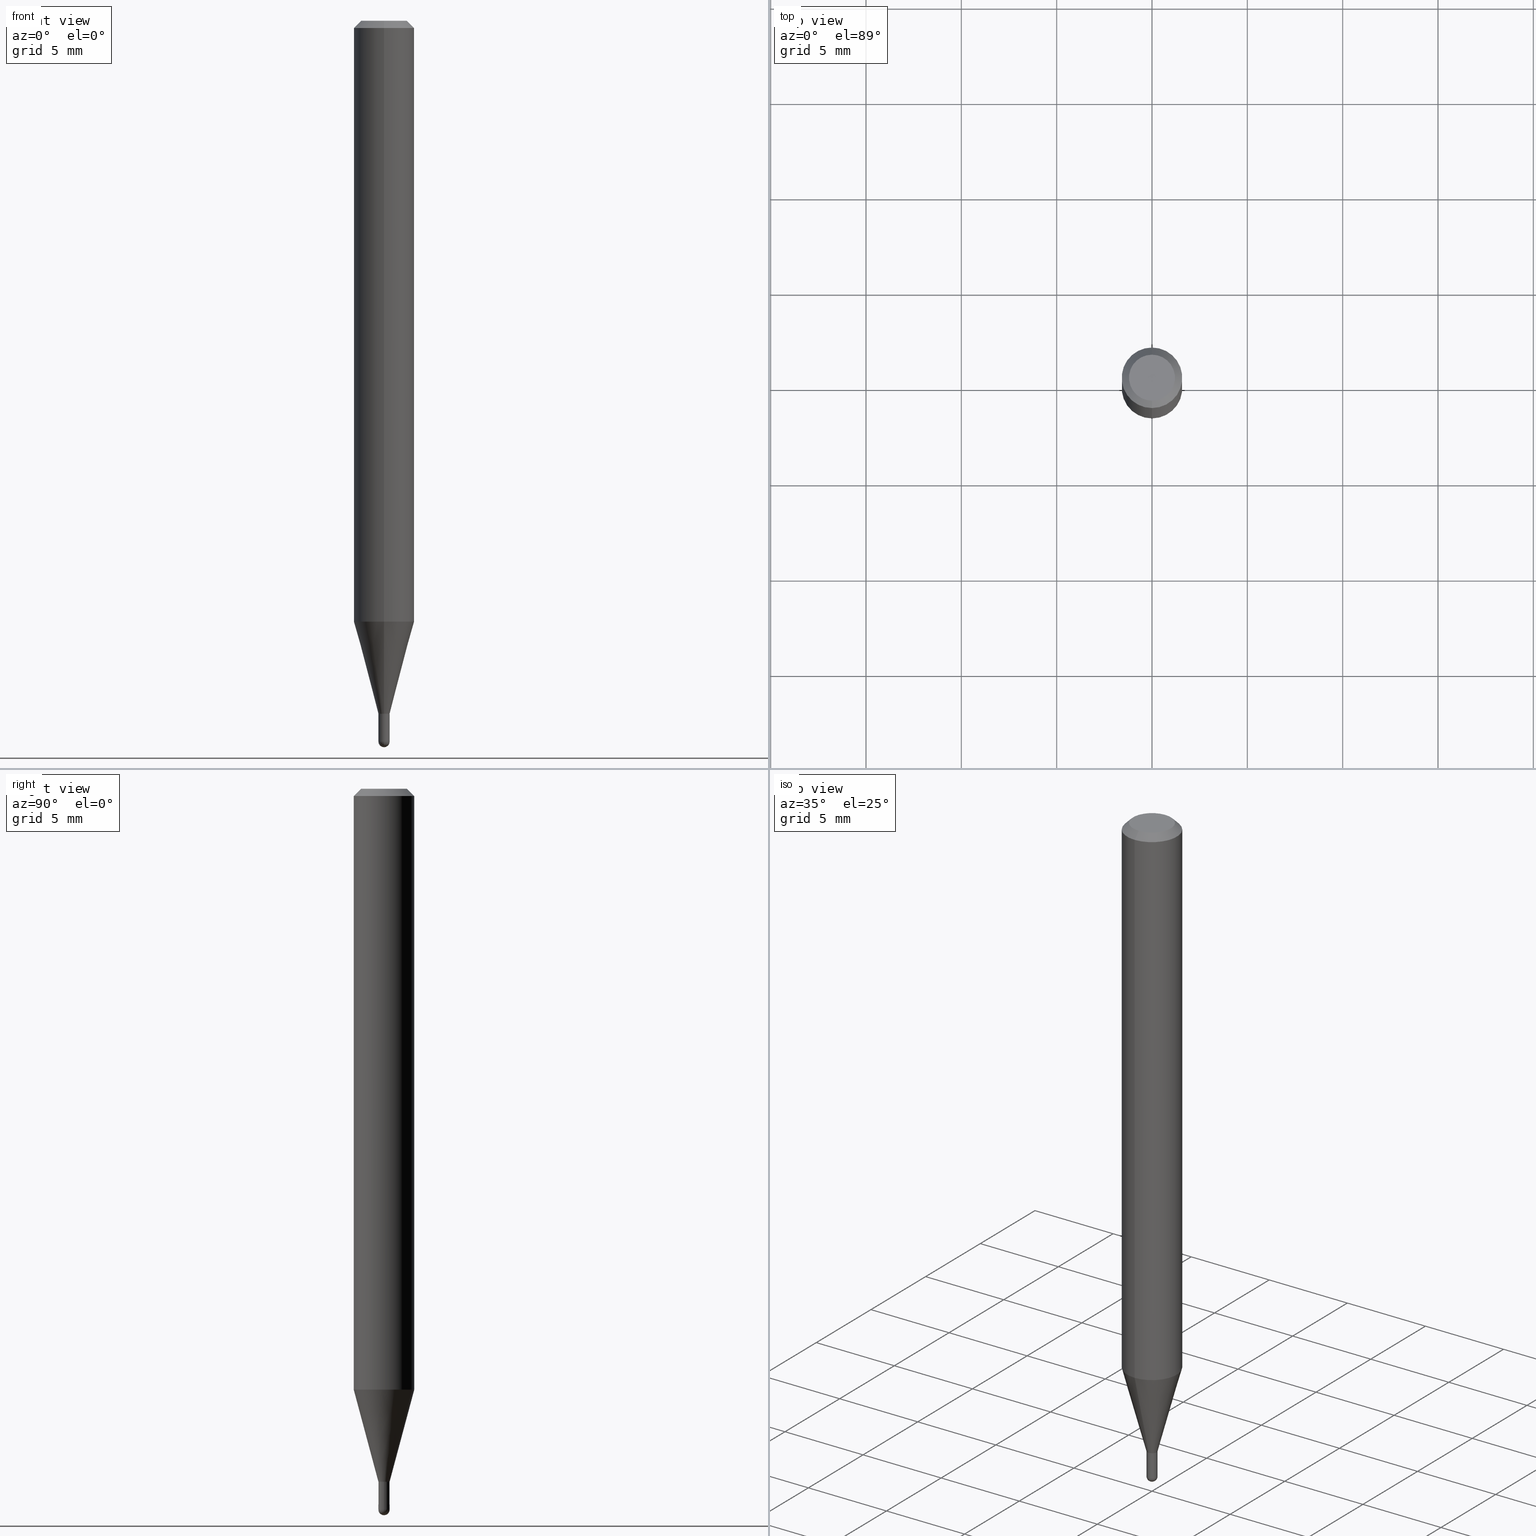
[diagram: canonical four-view strip — front | top / right | iso, engineering-drawing reading convention]
A machine part, canonical four-view strip (front | top / right | iso — engineering-drawing reading convention). The complete STEP part file that produces these views, byte-faithful:
ISO-10303-21;
HEADER;
FILE_DESCRIPTION (( 'STEP AP203' ),
    '1' );
FILE_NAME ('01446.STEP',
    '2024-03-07T20:59:36',
    ( '' ),
    ( '' ),
    'SwSTEP 2.0',
    'SolidWorks 2023',
    '' );
FILE_SCHEMA (( 'CONFIG_CONTROL_DESIGN' ));
ENDSEC;

DATA;
#1 = CARTESIAN_POINT ( 'NONE',  ( -8.030407079339154307E-17, -0.01149999999999992521, 4.015180704281670797E-17 ) ) ;
#2 = CYLINDRICAL_SURFACE ( 'NONE', #236, 0.01149999999999992521 ) ;
#3 = AXIS2_PLACEMENT_3D ( 'NONE', #492, #203, #173 ) ;
#4 = CARTESIAN_POINT ( 'NONE',  ( 3.639096876774019405E-29, -5.198478316687040897E-15, -1.488499999999999934 ) ) ;
#5 = CARTESIAN_POINT ( 'NONE',  ( -4.364351673553613969E-16, -0.06250000000000432987, -1.240665408813993009 ) ) ;
#6 = ORIENTED_EDGE ( 'NONE', *, *, #372, .T. ) ;
#7 = DIRECTION ( 'NONE',  ( 1.000000000000000000, -6.982962677686291165E-15, 0.000000000000000000 ) ) ;
#8 = PERSON_AND_ORGANIZATION_ROLE ( 'design_owner' ) ;
#9 = CIRCLE ( 'NONE', #510, 0.01100000000000000110 ) ;
#10 = ORIENTED_EDGE ( 'NONE', *, *, #16, .T. ) ;
#11 = DIRECTION ( 'NONE',  ( -2.445482672155709146E-29, 3.491461481984083655E-15, 1.000000000000000000 ) ) ;
#12 = ORIENTED_EDGE ( 'NONE', *, *, #239, .T. ) ;
#13 = AXIS2_PLACEMENT_3D ( 'NONE', #427, #430, #390 ) ;
#14 = PERSON_AND_ORGANIZATION ( #384, #244 ) ;
#15 = ORIENTED_EDGE ( 'NONE', *, *, #76, .F. ) ;
#16 = EDGE_CURVE ( 'NONE', #476, #337, #298, .T. ) ;
#17 = ORIENTED_EDGE ( 'NONE', *, *, #120, .F. ) ;
#18 = DIRECTION ( 'NONE',  ( -2.445482672155709146E-29, 3.491461481984083655E-15, 1.000000000000000000 ) ) ;
#19 = DATE_AND_TIME ( #253, #423 ) ;
#20 = CARTESIAN_POINT ( 'NONE',  ( 3.034025759197599694E-29, -4.331735486904094553E-15, -1.240665408813993231 ) ) ;
#21 = VERTEX_POINT ( 'NONE', #386 ) ;
#22 = VERTEX_POINT ( 'NONE', #30 ) ;
#23 = DIRECTION ( 'NONE',  ( -6.982962677686265922E-15, -1.000000000000000000, 3.491461481984083655E-15 ) ) ;
#24 = ORIENTED_EDGE ( 'NONE', *, *, #86, .T. ) ;
#25 = CIRCLE ( 'NONE', #472, 0.01150000000000020450 ) ;
#26 = AXIS2_PLACEMENT_3D ( 'NONE', #153, #477, #316 ) ;
#27 = PLANE ( 'NONE',  #208 ) ;
#28 = DIRECTION ( 'NONE',  ( -2.445482672155709146E-29, 3.491461481984083655E-15, 1.000000000000000000 ) ) ;
#29 = CARTESIAN_POINT ( 'NONE',  ( 8.171241461244863344E-17, 0.01149999999999490319, -1.488499999999999934 ) ) ;
#30 = CARTESIAN_POINT ( 'NONE',  ( -4.364351673553912750E-16, -0.06250000000000005551, -0.01499999999999979128 ) ) ;
#31 = FACE_OUTER_BOUND ( 'NONE', #370, .T. ) ;
#32 = ORIENTED_EDGE ( 'NONE', *, *, #350, .T. ) ;
#33 = APPROVAL ( #362, 'UNSPECIFIED' ) ;
#34 = LOCAL_TIME ( 15, 59, 36.00000000000000000, #442 ) ;
#35 = DIRECTION ( 'NONE',  ( 6.982962677686265922E-15, 1.000000000000000000, -3.483106191921935554E-15 ) ) ;
#36 = CIRCLE ( 'NONE', #414, 0.06250000000000000000 ) ;
#37 = DIRECTION ( 'NONE',  ( -2.445482672155709146E-29, 3.491461481984083655E-15, 1.000000000000000000 ) ) ;
#38 = DIRECTION ( 'NONE',  ( 2.445482672155708866E-29, -3.491461481984083655E-15, -1.000000000000000000 ) ) ;
#39 = DIRECTION ( 'NONE',  ( -6.982962677686265922E-15, -1.000000000000000000, 3.483106191921935554E-15 ) ) ;
#40 = CARTESIAN_POINT ( 'NONE',  ( 3.499485703854820099E-29, -4.996281380719223965E-15, -1.431000000000000050 ) ) ;
#41 = VECTOR ( 'NONE', #53, 39.37007874015748143 ) ;
#42 = LOCAL_TIME ( 15, 59, 36.00000000000000000, #419 ) ;
#43 = ORIENTED_EDGE ( 'NONE', *, *, #479, .F. ) ;
#44 = FACE_OUTER_BOUND ( 'NONE', #409, .T. ) ;
#45 = ORIENTED_EDGE ( 'NONE', *, *, #76, .T. ) ;
#46 = FACE_OUTER_BOUND ( 'NONE', #146, .T. ) ;
#47 = LINE ( 'NONE', #200, #450 ) ;
#48 = CONICAL_SURFACE ( 'NONE', #279, 0.01149999999999992521, 0.2617993877991575125 ) ;
#49 = EDGE_CURVE ( 'NONE', #107, #431, #373, .T. ) ;
#50 = PRODUCT_DEFINITION_SHAPE ( 'NONE', 'NONE',  #202 ) ;
#51 = EDGE_CURVE ( 'NONE', #488, #337, #321, .T. ) ;
#52 = ORIENTED_EDGE ( 'NONE', *, *, #199, .F. ) ;
#53 = DIRECTION ( 'NONE',  ( 4.937700262164548042E-15, 0.7071067811865451302, -0.7071067811865499042 ) ) ;
#54 = DIRECTION ( 'NONE',  ( -2.445468806185136597E-29, 3.491481338843145583E-15, 1.000000000000000000 ) ) ;
#55 = CARTESIAN_POINT ( 'NONE',  ( 3.640080318006575506E-29, -5.197069972868022017E-15, -1.488499999999999934 ) ) ;
#56 = CONICAL_SURFACE ( 'NONE', #154, 0.01100000000000000110, 0.7853981633974739252 ) ;
#57 = ORIENTED_EDGE ( 'NONE', *, *, #486, .T. ) ;
#58 = DIRECTION ( 'NONE',  ( 1.000000000000000000, -6.982962677686291165E-15, 0.000000000000000000 ) ) ;
#59 = AXIS2_PLACEMENT_3D ( 'NONE', #220, #70, #219 ) ;
#60 = ADVANCED_FACE ( 'NONE', ( #210 ), #326, .F. ) ;
#61 = DIRECTION ( 'NONE',  ( -2.445468806185136597E-29, 3.491481338843145583E-15, 1.000000000000000000 ) ) ;
#62 = CYLINDRICAL_SURFACE ( 'NONE', #235, 0.01149999999999999981 ) ;
#63 = ORIENTED_EDGE ( 'NONE', *, *, #303, .T. ) ;
#64 = CC_DESIGN_APPROVAL ( #249, ( #202 ) ) ;
#65 = ORIENTED_EDGE ( 'NONE', *, *, #103, .F. ) ;
#66 = CLOSED_SHELL ( 'NONE', ( #84, #508, #404, #280, #106 ) ) ;
#67 = AXIS2_PLACEMENT_3D ( 'NONE', #229, #509, #401 ) ;
#68 = DIRECTION ( 'NONE',  ( 6.982962677686265922E-15, 1.000000000000000000, -3.491461481984083655E-15 ) ) ;
#69 = ORIENTED_EDGE ( 'NONE', *, *, #121, .T. ) ;
#70 = DIRECTION ( 'NONE',  ( -2.445482672155709146E-29, 3.491461481984083655E-15, 1.000000000000000000 ) ) ;
#71 = DIRECTION ( 'NONE',  ( 2.445482672155709146E-29, -3.491461481984083655E-15, -1.000000000000000000 ) ) ;
#72 = ORIENTED_EDGE ( 'NONE', *, *, #87, .T. ) ;
#73 = DIRECTION ( 'NONE',  ( 2.445482672155709146E-29, -3.491461481984083655E-15, -1.000000000000000000 ) ) ;
#74 = AXIS2_PLACEMENT_3D ( 'NONE', #336, #73, #35 ) ;
#75 = CARTESIAN_POINT ( 'NONE',  ( 3.666728047428871024E-29, -5.239334523993247680E-15, -1.500000000000000222 ) ) ;
#76 = EDGE_CURVE ( 'NONE', #448, #22, #134, .T. ) ;
#77 = DIRECTION ( 'NONE',  ( -4.937700262164674260E-15, -0.7071067811865632269, 0.7071067811865319186 ) ) ;
#78 = CONICAL_SURFACE ( 'NONE', #441, 0.01149999999999992521, 0.2617993877991575125 ) ;
#79 = DIRECTION ( 'NONE',  ( 7.105427357601001070E-15, 1.000000000000000000, 0.000000000000000000 ) ) ;
#80 = ORIENTED_EDGE ( 'NONE', *, *, #350, .F. ) ;
#81 = CALENDAR_DATE ( 2024, 7, 3 ) ;
#82 = DIRECTION ( 'NONE',  ( -2.445482672155709146E-29, 3.491461481984083655E-15, 1.000000000000000000 ) ) ;
#83 = CARTESIAN_POINT ( 'NONE',  ( 7.993605777304599016E-17, 0.01099999999999500509, -1.431000000000000050 ) ) ;
#84 = ADVANCED_FACE ( 'NONE', ( #282 ), #170, .T. ) ;
#85 = ORIENTED_EDGE ( 'NONE', *, *, #121, .F. ) ;
#86 = EDGE_CURVE ( 'NONE', #464, #476, #36, .T. ) ;
#87 = EDGE_CURVE ( 'NONE', #233, #431, #138, .T. ) ;
#88 = AXIS2_PLACEMENT_3D ( 'NONE', #187, #483, #184 ) ;
#89 = CARTESIAN_POINT ( 'NONE',  ( 3.640080318006575506E-29, -5.197069972868022017E-15, -1.488499999999999934 ) ) ;
#90 = CARTESIAN_POINT ( 'NONE',  ( -4.364351673553916201E-16, -0.06250000000000000000, 2.182163426240052284E-16 ) ) ;
#91 = EDGE_LOOP ( 'NONE', ( #12, #439, #380, #52 ) ) ;
#92 = APPROVAL_STATUS ( 'not_yet_approved' ) ;
#93 = DIRECTION ( 'NONE',  ( -6.982962677686266711E-15, -1.000000000000000000, 3.491461481984083655E-15 ) ) ;
#94 = EDGE_LOOP ( 'NONE', ( #230, #277 ) ) ;
#95 = VECTOR ( 'NONE', #37, 39.37007874015748143 ) ;
#96 = APPROVAL_DATE_TIME ( #19, #365 ) ;
#97 = CYLINDRICAL_SURFACE ( 'NONE', #297, 0.06250000000000000000 ) ;
#98 = CC_DESIGN_DATE_AND_TIME_ASSIGNMENT ( #358, #275, ( #202 ) ) ;
#99 = DATE_TIME_ROLE ( 'classification_date' ) ;
#100 = PERSON_AND_ORGANIZATION ( #384, #244 ) ;
#101 = CARTESIAN_POINT ( 'NONE',  ( 7.815970093364600929E-17, 0.01099999999999500509, -1.431000000000000050 ) ) ;
#102 = CARTESIAN_POINT ( 'NONE',  ( 3.499485703854820099E-29, -4.996281380719223965E-15, -1.431000000000000050 ) ) ;
#103 = EDGE_CURVE ( 'NONE', #141, #122, #440, .T. ) ;
#104 = ADVANCED_BREP_SHAPE_REPRESENTATION ( '01446', ( #188, #360, #478 ), #397 ) ;
#105 = VERTEX_POINT ( 'NONE', #240 ) ;
#106 = ADVANCED_FACE ( 'NONE', ( #324 ), #62, .T. ) ;
#107 = VERTEX_POINT ( 'NONE', #213 ) ;
#108 = CIRCLE ( 'NONE', #206, 0.01149999999999999981 ) ;
#109 = CONICAL_SURFACE ( 'NONE', #340, 0.01100000000000000110, 0.7853981633974739252 ) ;
#110 = CC_DESIGN_APPROVAL ( #33, ( #281 ) ) ;
#111 = DIRECTION ( 'NONE',  ( -2.445482672155709146E-29, 3.491461481984083655E-15, 1.000000000000000000 ) ) ;
#112 = CARTESIAN_POINT ( 'NONE',  ( 3.499465861650930802E-29, -4.996309795884541218E-15, -1.431000000000000050 ) ) ;
#113 = LINE ( 'NONE', #101, #128 ) ;
#114 = ORIENTED_EDGE ( 'NONE', *, *, #103, .T. ) ;
#115 = EDGE_CURVE ( 'NONE', #488, #448, #247, .T. ) ;
#116 = FACE_OUTER_BOUND ( 'NONE', #287, .T. ) ;
#117 = CARTESIAN_POINT ( 'NONE',  ( -7.681258945451393699E-17, -0.01100000000000499710, -1.431000000000000050 ) ) ;
#118 = ORIENTED_EDGE ( 'NONE', *, *, #381, .F. ) ;
#119 = LINE ( 'NONE', #1, #314 ) ;
#120 = EDGE_CURVE ( 'NONE', #368, #476, #329, .T. ) ;
#121 = EDGE_CURVE ( 'NONE', #21, #105, #470, .T. ) ;
#122 = VERTEX_POINT ( 'NONE', #29 ) ;
#123 = PERSON_AND_ORGANIZATION_ROLE ( 'creator' ) ;
#124 = DIRECTION ( 'NONE',  ( -6.982962677686265922E-15, -1.000000000000000000, 0.000000000000000000 ) ) ;
#125 = CARTESIAN_POINT ( 'NONE',  ( -8.030407079335637713E-17, -0.01150000000000530112, -1.488499999999999934 ) ) ;
#126 = ORIENTED_EDGE ( 'NONE', *, *, #276, .F. ) ;
#127 = DIRECTION ( 'NONE',  ( -2.445482672155709146E-29, 3.491461481984083655E-15, 1.000000000000000000 ) ) ;
#128 = VECTOR ( 'NONE', #342, 39.37007874015748143 ) ;
#129 = APPROVAL_ROLE ( '' ) ;
#130 = PLANE ( 'NONE',  #346 ) ;
#131 = PERSON_AND_ORGANIZATION ( #384, #244 ) ;
#132 = ORIENTED_EDGE ( 'NONE', *, *, #506, .F. ) ;
#133 = APPROVAL_PERSON_ORGANIZATION ( #315, #33, #129 ) ;
#134 = LINE ( 'NONE', #290, #148 ) ;
#135 = AXIS2_PLACEMENT_3D ( 'NONE', #293, #460, #296 ) ;
#136 = LOCAL_TIME ( 15, 59, 36.00000000000000000, #378 ) ;
#137 = DIRECTION ( 'NONE',  ( -2.445468806185136597E-29, 3.491481338843145583E-15, 1.000000000000000000 ) ) ;
#138 = LINE ( 'NONE', #451, #348 ) ;
#139 = DIRECTION ( 'NONE',  ( -6.982962677686265922E-15, -1.000000000000000000, 3.491461481984083655E-15 ) ) ;
#140 = DIRECTION ( 'NONE',  ( 1.839019923739649619E-15, 0.2588190451025318972, 0.9659258262890650926 ) ) ;
#141 = VERTEX_POINT ( 'NONE', #457 ) ;
#142 = CIRCLE ( 'NONE', #407, 0.01100000000000000110 ) ;
#143 = CARTESIAN_POINT ( 'NONE',  ( 3.498262962518742048E-29, -4.994535649978232265E-15, -1.430500000000000327 ) ) ;
#144 = DIRECTION ( 'NONE',  ( -1.000000000000000000, 6.982962677686265922E-15, -4.883557194083112340E-29 ) ) ;
#145 = DIRECTION ( 'NONE',  ( -6.982962677686265922E-15, -1.000000000000000000, 0.000000000000000000 ) ) ;
#146 = EDGE_LOOP ( 'NONE', ( #459, #63, #263, #497 ) ) ;
#147 = VECTOR ( 'NONE', #11, 39.37007874015748143 ) ;
#148 = VECTOR ( 'NONE', #374, 39.37007874015748143 ) ;
#149 = DIRECTION ( 'NONE',  ( -2.445482672155709146E-29, 3.491461481984083655E-15, 1.000000000000000000 ) ) ;
#150 = ORIENTED_EDGE ( 'NONE', *, *, #420, .T. ) ;
#151 = CARTESIAN_POINT ( 'NONE',  ( 3.639096876774019405E-29, -5.198478316687040897E-15, -1.488499999999999934 ) ) ;
#152 = VECTOR ( 'NONE', #140, 39.37007874015748854 ) ;
#153 = CARTESIAN_POINT ( 'NONE',  ( 0.000000000000000000, 0.000000000000000000, 0.000000000000000000 ) ) ;
#154 = AXIS2_PLACEMENT_3D ( 'NONE', #198, #232, #405 ) ;
#155 = APPLICATION_PROTOCOL_DEFINITION ( 'international standard', 'config_control_design', 1994, #288 ) ;
#156 = DIRECTION ( 'NONE',  ( -6.982962677686266711E-15, -1.000000000000000000, 3.491461481984084444E-15 ) ) ;
#157 = ORIENTED_EDGE ( 'NONE', *, *, #87, .F. ) ;
#158 = APPROVAL_DATE_TIME ( #484, #249 ) ;
#159 = LINE ( 'NONE', #117, #392 ) ;
#160 = DIRECTION ( 'NONE',  ( -2.445482672155709146E-29, 3.491461481984083655E-15, 1.000000000000000000 ) ) ;
#161 = AXIS2_PLACEMENT_3D ( 'NONE', #284, #379, #93 ) ;
#162 = ADVANCED_FACE ( 'NONE', ( #463 ), #27, .F. ) ;
#163 = EDGE_LOOP ( 'NONE', ( #24, #10, #461, #501 ) ) ;
#164 = DATE_AND_TIME ( #272, #323 ) ;
#165 = ADVANCED_FACE ( 'NONE', ( #31 ), #434, .T. ) ;
#166 = DIRECTION ( 'NONE',  ( -2.445482672155709146E-29, 3.491461481984083655E-15, 1.000000000000000000 ) ) ;
#167 = CIRCLE ( 'NONE', #135, 0.06250000000000000000 ) ;
#168 = DIRECTION ( 'NONE',  ( -6.982962677686265922E-15, -1.000000000000000000, 0.000000000000000000 ) ) ;
#169 = CC_DESIGN_APPROVAL ( #365, ( #349 ) ) ;
#170 = CYLINDRICAL_SURFACE ( 'NONE', #3, 0.01149999999999999981 ) ;
#171 = ORIENTED_EDGE ( 'NONE', *, *, #16, .F. ) ;
#172 = CC_DESIGN_PERSON_AND_ORGANIZATION_ASSIGNMENT ( #351, #123, ( #281 ) ) ;
#173 = DIRECTION ( 'NONE',  ( 1.000000000000000000, -6.982962677686267499E-15, 4.876176775795935793E-29 ) ) ;
#174 = APPROVAL_STATUS ( 'not_yet_approved' ) ;
#175 = DIRECTION ( 'NONE',  ( 1.000000000000000000, -6.982962677686265922E-15, 4.883557194083112901E-29 ) ) ;
#176 = CARTESIAN_POINT ( 'NONE',  ( 3.499485703854820099E-29, -4.996281380719223965E-15, -1.431000000000000050 ) ) ;
#177 =( NAMED_UNIT ( * ) PLANE_ANGLE_UNIT ( ) SI_UNIT ( $, .RADIAN. ) );
#178 = ADVANCED_FACE ( 'NONE', ( #500 ), #261, .T. ) ;
#179 = AXIS2_PLACEMENT_3D ( 'NONE', #265, #160, #469 ) ;
#180 = DIRECTION ( 'NONE',  ( 6.982962677686265922E-15, 1.000000000000000000, -3.483106191921935554E-15 ) ) ;
#181 = EDGE_LOOP ( 'NONE', ( #317, #221, #328, #69 ) ) ;
#182 = LINE ( 'NONE', #185, #308 ) ;
#183 = VECTOR ( 'NONE', #432, 39.37007874015748143 ) ;
#184 = DIRECTION ( 'NONE',  ( 1.000000000000000000, -6.982962677686291165E-15, 0.000000000000000000 ) ) ;
#185 = CARTESIAN_POINT ( 'NONE',  ( -8.030407079335653737E-17, -0.01150000000000492122, -1.431000000000000050 ) ) ;
#186 = ORIENTED_EDGE ( 'NONE', *, *, #479, .T. ) ;
#187 = CARTESIAN_POINT ( 'NONE',  ( 3.640080318006575506E-29, -5.197069972868022017E-15, -1.488499999999999934 ) ) ;
#188 = MANIFOLD_SOLID_BREP ( 'Body-Move/Copy2[1]', #66 ) ;
#189 = CARTESIAN_POINT ( 'NONE',  ( 0.000000000000000000, 0.000000000000000000, 0.000000000000000000 ) ) ;
#190 = CC_DESIGN_SECURITY_CLASSIFICATION ( #349, ( #281 ) ) ;
#191 = UNCERTAINTY_MEASURE_WITH_UNIT (LENGTH_MEASURE( 1.000000000000000082E-05 ), #251, 'distance_accuracy_value', 'NONE');
#192 = CLOSED_SHELL ( 'NONE', ( #395, #212, #178, #318, #335, #327, #487, #165, #162, #60, #406, #361 ) ) ;
#193 = DIRECTION ( 'NONE',  ( -6.982962677686265922E-15, -1.000000000000000000, 0.000000000000000000 ) ) ;
#194 = CIRCLE ( 'NONE', #269, 0.01149999999999999981 ) ;
#195 = CARTESIAN_POINT ( 'NONE',  ( 8.030407079342705414E-17, 0.01149999999999500380, -1.431000000000000050 ) ) ;
#196 = EDGE_CURVE ( 'NONE', #354, #433, #25, .T. ) ;
#197 = ORIENTED_EDGE ( 'NONE', *, *, #429, .T. ) ;
#198 = CARTESIAN_POINT ( 'NONE',  ( 3.499485703854820099E-29, -4.996281380719223965E-15, -1.431000000000000050 ) ) ;
#199 = EDGE_CURVE ( 'NONE', #274, #464, #182, .T. ) ;
#200 = CARTESIAN_POINT ( 'NONE',  ( 8.171241461241097765E-17, 0.01149999999999992521, -4.015180704281670797E-17 ) ) ;
#201 = AXIS2_PLACEMENT_3D ( 'NONE', #4, #475, #124 ) ;
#202 = PRODUCT_DEFINITION ( 'UNKNOWN', '', #281, #313 ) ;
#203 = DIRECTION ( 'NONE',  ( -2.445468806185136597E-29, 3.491481338843145583E-15, 1.000000000000000000 ) ) ;
#204 = ORIENTED_EDGE ( 'NONE', *, *, #303, .F. ) ;
#205 = SPHERICAL_SURFACE ( 'NONE', #438, 0.01150000000000020450 ) ;
#206 = AXIS2_PLACEMENT_3D ( 'NONE', #55, #54, #58 ) ;
#207 = DIRECTION ( 'NONE',  ( -2.445482672155708866E-29, 3.491461481984083655E-15, 1.000000000000000000 ) ) ;
#208 = AXIS2_PLACEMENT_3D ( 'NONE', #424, #38, #68 ) ;
#209 = CIRCLE ( 'NONE', #425, 0.01150000000000020450 ) ;
#210 = FACE_OUTER_BOUND ( 'NONE', #512, .T. ) ;
#211 = VERTEX_POINT ( 'NONE', #504 ) ;
#212 = ADVANCED_FACE ( 'NONE', ( #300 ), #109, .T. ) ;
#213 = CARTESIAN_POINT ( 'NONE',  ( 0.01149999999999999981, -5.076613866677933538E-15, -1.431000000000000050 ) ) ;
#214 = DIMENSIONAL_EXPONENTS ( 1.000000000000000000, 0.000000000000000000, 0.000000000000000000, 0.000000000000000000, 0.000000000000000000, 0.000000000000000000, 0.000000000000000000 ) ;
#215 = DIRECTION ( 'NONE',  ( -2.445482672155709146E-29, 3.491461481984083655E-15, 1.000000000000000000 ) ) ;
#216 = APPROVAL_ROLE ( '' ) ;
#217 = CARTESIAN_POINT ( 'NONE',  ( 4.440892098500625669E-16, 0.06250000000000000000, -2.182163426240052284E-16 ) ) ;
#218 = EDGE_CURVE ( 'NONE', #22, #337, #167, .T. ) ;
#219 = DIRECTION ( 'NONE',  ( -6.982962677686266711E-15, -1.000000000000000000, 3.491461481984083655E-15 ) ) ;
#220 = CARTESIAN_POINT ( 'NONE',  ( 2.167006461281075159E-46, -3.093875772222917516E-32, -8.861262792636534541E-18 ) ) ;
#221 = ORIENTED_EDGE ( 'NONE', *, *, #239, .F. ) ;
#222 = CIRCLE ( 'NONE', #13, 0.01149999999999992521 ) ;
#223 = DIRECTION ( 'NONE',  ( -2.445482672155709146E-29, 3.491461481984083655E-15, 1.000000000000000000 ) ) ;
#224 = EDGE_CURVE ( 'NONE', #105, #21, #449, .T. ) ;
#225 = CARTESIAN_POINT ( 'NONE',  ( 2.629008122312695963E-16, 0.01149999999999492921, -1.431000000000000050 ) ) ;
#226 = CARTESIAN_POINT ( 'NONE',  ( 3.499485703854820099E-29, -4.996281380719223965E-15, -1.431000000000000050 ) ) ;
#227 = AXIS2_PLACEMENT_3D ( 'NONE', #396, #436, #437 ) ;
#228 = AXIS2_PLACEMENT_3D ( 'NONE', #176, #207, #23 ) ;
#229 = CARTESIAN_POINT ( 'NONE',  ( 3.499485703854820099E-29, -4.996281380719223965E-15, -1.431000000000000050 ) ) ;
#230 = ORIENTED_EDGE ( 'NONE', *, *, #115, .T. ) ;
#231 = FACE_OUTER_BOUND ( 'NONE', #181, .T. ) ;
#232 = DIRECTION ( 'NONE',  ( -2.445482672155709146E-29, 3.491461481984083655E-15, 1.000000000000000000 ) ) ;
#233 = VERTEX_POINT ( 'NONE', #258 ) ;
#234 = CC_DESIGN_PERSON_AND_ORGANIZATION_ASSIGNMENT ( #267, #400, ( #281 ) ) ;
#235 = AXIS2_PLACEMENT_3D ( 'NONE', #237, #137, #496 ) ;
#236 = AXIS2_PLACEMENT_3D ( 'NONE', #189, #511, #156 ) ;
#237 = CARTESIAN_POINT ( 'NONE',  ( 0.000000000000000000, 0.000000000000000000, 0.000000000000000000 ) ) ;
#238 = ORIENTED_EDGE ( 'NONE', *, *, #51, .T. ) ;
#239 = EDGE_CURVE ( 'NONE', #274, #368, #222, .T. ) ;
#240 = CARTESIAN_POINT ( 'NONE',  ( 8.171241461244568753E-17, 0.01149999999999489278, -1.430500000000000327 ) ) ;
#241 = CARTESIAN_POINT ( 'NONE',  ( 3.034025759197599694E-29, -4.331735486904094553E-15, -1.240665408813993231 ) ) ;
#242 = ORIENTED_EDGE ( 'NONE', *, *, #276, .T. ) ;
#243 = DIRECTION ( 'NONE',  ( -2.445468806185136877E-29, 3.491481338843145188E-15, 1.000000000000000000 ) ) ;
#244 = ORGANIZATION ( 'UNSPECIFIED', 'UNSPECIFIED', '' ) ;
#245 = EDGE_CURVE ( 'NONE', #448, #488, #299, .T. ) ;
#246 = PERSON_AND_ORGANIZATION ( #384, #244 ) ;
#247 = CIRCLE ( 'NONE', #161, 0.04749999999999999362 ) ;
#248 = FACE_OUTER_BOUND ( 'NONE', #302, .T. ) ;
#249 = APPROVAL ( #174, 'UNSPECIFIED' ) ;
#250 = ORIENTED_EDGE ( 'NONE', *, *, #381, .T. ) ;
#251 =( CONVERSION_BASED_UNIT ( 'INCH', #494 ) LENGTH_UNIT ( ) NAMED_UNIT ( #214 ) );
#252 = ORIENTED_EDGE ( 'NONE', *, *, #245, .F. ) ;
#253 = CALENDAR_DATE ( 2024, 7, 3 ) ;
#254 = CARTESIAN_POINT ( 'NONE',  ( 3.668224008233565961E-31, -5.237192222976128786E-17, -0.01500000000000000812 ) ) ;
#255 = EDGE_LOOP ( 'NONE', ( #428, #366, #85, #320 ) ) ;
#256 = EDGE_CURVE ( 'NONE', #393, #105, #113, .T. ) ;
#257 = APPROVAL_PERSON_ORGANIZATION ( #246, #249, #330 ) ;
#258 = CARTESIAN_POINT ( 'NONE',  ( -0.01149999999999999981, -5.014977469763870023E-15, -1.488499999999999934 ) ) ;
#259 = ORIENTED_EDGE ( 'NONE', *, *, #49, .F. ) ;
#260 = CARTESIAN_POINT ( 'NONE',  ( 3.498262962518742048E-29, -4.994535649978232265E-15, -1.430500000000000327 ) ) ;
#261 = CONICAL_SURFACE ( 'NONE', #495, 0.06250000000000000000, 0.7853981633974483900 ) ;
#262 = FACE_OUTER_BOUND ( 'NONE', #91, .T. ) ;
#263 = ORIENTED_EDGE ( 'NONE', *, *, #295, .T. ) ;
#264 = PRODUCT_RELATED_PRODUCT_CATEGORY ( 'detail', '', ( #447 ) ) ;
#265 = CARTESIAN_POINT ( 'NONE',  ( 0.000000000000000000, 0.000000000000000000, 0.000000000000000000 ) ) ;
#266 = PERSON_AND_ORGANIZATION ( #384, #244 ) ;
#267 = PERSON_AND_ORGANIZATION ( #384, #244 ) ;
#268 = CARTESIAN_POINT ( 'NONE',  ( 3.639096876774019405E-29, -5.198478316687040897E-15, -1.488499999999999934 ) ) ;
#269 = AXIS2_PLACEMENT_3D ( 'NONE', #271, #403, #352 ) ;
#270 = AXIS2_PLACEMENT_3D ( 'NONE', #112, #61, #331 ) ;
#271 = CARTESIAN_POINT ( 'NONE',  ( 3.640080318006575506E-29, -5.197069972868022017E-15, -1.488499999999999934 ) ) ;
#272 = CALENDAR_DATE ( 2024, 7, 3 ) ;
#273 = CYLINDRICAL_SURFACE ( 'NONE', #26, 0.01149999999999992521 ) ;
#274 = VERTEX_POINT ( 'NONE', #505 ) ;
#275 = DATE_TIME_ROLE ( 'creation_date' ) ;
#276 = EDGE_CURVE ( 'NONE', #141, #107, #304, .T. ) ;
#277 = ORIENTED_EDGE ( 'NONE', *, *, #245, .T. ) ;
#278 = CIRCLE ( 'NONE', #88, 0.01149999999999999981 ) ;
#279 = AXIS2_PLACEMENT_3D ( 'NONE', #363, #445, #312 ) ;
#280 = ADVANCED_FACE ( 'NONE', ( #116 ), #422, .T. ) ;
#281 = PRODUCT_DEFINITION_FORMATION_WITH_SPECIFIED_SOURCE ( 'ANY', '', #447, .NOT_KNOWN. ) ;
#282 = FACE_OUTER_BOUND ( 'NONE', #343, .T. ) ;
#283 = CARTESIAN_POINT ( 'NONE',  ( 3.840629472727447874E-16, 0.04749999999999999362, -1.747056831868805136E-16 ) ) ;
#284 = CARTESIAN_POINT ( 'NONE',  ( 2.167006461281075159E-46, -3.093875772222917516E-32, -8.861262792636534541E-18 ) ) ;
#285 = ORIENTED_EDGE ( 'NONE', *, *, #218, .T. ) ;
#286 = EDGE_CURVE ( 'NONE', #337, #22, #289, .T. ) ;
#287 = EDGE_LOOP ( 'NONE', ( #80, #490, #468, #391 ) ) ;
#288 = APPLICATION_CONTEXT ( 'configuration controlled 3d designs of mechanical parts and assemblies' ) ;
#289 = CIRCLE ( 'NONE', #480, 0.06250000000000000000 ) ;
#290 = CARTESIAN_POINT ( 'NONE',  ( -4.287811248607203282E-16, -0.06250000000000005551, -0.01499999999999979128 ) ) ;
#291 = EDGE_LOOP ( 'NONE', ( #485, #375 ) ) ;
#292 = EDGE_CURVE ( 'NONE', #274, #21, #119, .T. ) ;
#293 = CARTESIAN_POINT ( 'NONE',  ( 3.668224008233565961E-31, -5.237192222976128786E-17, -0.01500000000000000812 ) ) ;
#294 = ORIENTED_EDGE ( 'NONE', *, *, #506, .T. ) ;
#295 = EDGE_CURVE ( 'NONE', #211, #21, #159, .T. ) ;
#296 = DIRECTION ( 'NONE',  ( -6.982962677686265922E-15, -1.000000000000000000, 3.483106191921935554E-15 ) ) ;
#297 = AXIS2_PLACEMENT_3D ( 'NONE', #411, #452, #139 ) ;
#298 = LINE ( 'NONE', #217, #95 ) ;
#299 = CIRCLE ( 'NONE', #59, 0.04749999999999999362 ) ;
#300 = FACE_OUTER_BOUND ( 'NONE', #255, .T. ) ;
#301 = CC_DESIGN_PERSON_AND_ORGANIZATION_ASSIGNMENT ( #131, #474, ( #202 ) ) ;
#302 = EDGE_LOOP ( 'NONE', ( #171, #294, #197, #426 ) ) ;
#303 = EDGE_CURVE ( 'NONE', #393, #211, #142, .T. ) ;
#304 = LINE ( 'NONE', #467, #183 ) ;
#305 = FACE_OUTER_BOUND ( 'NONE', #163, .T. ) ;
#306 = EDGE_LOOP ( 'NONE', ( #252, #45, #285, #333 ) ) ;
#307 = CC_DESIGN_DATE_AND_TIME_ASSIGNMENT ( #491, #99, ( #349 ) ) ;
#308 = VECTOR ( 'NONE', #507, 39.37007874015748854 ) ;
#309 = FACE_OUTER_BOUND ( 'NONE', #291, .T. ) ;
#310 = EDGE_LOOP ( 'NONE', ( #17, #250, #413, #132 ) ) ;
#311 = DIRECTION ( 'NONE',  ( -2.445482672155709146E-29, 3.491461481984083655E-15, 1.000000000000000000 ) ) ;
#312 = DIRECTION ( 'NONE',  ( -6.982962677686266711E-15, -1.000000000000000000, 0.000000000000000000 ) ) ;
#313 = DESIGN_CONTEXT ( 'detailed design', #499, 'design' ) ;
#314 = VECTOR ( 'NONE', #435, 39.37007874015748143 ) ;
#315 = PERSON_AND_ORGANIZATION ( #384, #244 ) ;
#316 = DIRECTION ( 'NONE',  ( -6.982962677686266711E-15, -1.000000000000000000, 3.491461481984084444E-15 ) ) ;
#317 = ORIENTED_EDGE ( 'NONE', *, *, #420, .F. ) ;
#318 = ADVANCED_FACE ( 'NONE', ( #305 ), #473, .T. ) ;
#319 = DIRECTION ( 'NONE',  ( -6.982962677686265922E-15, -1.000000000000000000, 0.000000000000000000 ) ) ;
#320 = ORIENTED_EDGE ( 'NONE', *, *, #295, .F. ) ;
#321 = LINE ( 'NONE', #489, #41 ) ;
#322 = AXIS2_PLACEMENT_3D ( 'NONE', #89, #418, #7 ) ;
#323 = LOCAL_TIME ( 15, 59, 36.00000000000000000, #364 ) ;
#324 = FACE_OUTER_BOUND ( 'NONE', #466, .T. ) ;
#325 = CALENDAR_DATE ( 2024, 7, 3 ) ;
#326 = PLANE ( 'NONE',  #228 ) ;
#327 = ADVANCED_FACE ( 'NONE', ( #345 ), #48, .T. ) ;
#328 = ORIENTED_EDGE ( 'NONE', *, *, #292, .T. ) ;
#329 = LINE ( 'NONE', #493, #152 ) ;
#330 = APPROVAL_ROLE ( '' ) ;
#331 = DIRECTION ( 'NONE',  ( 1.000000000000000000, -6.982962677686291165E-15, 0.000000000000000000 ) ) ;
#332 = AXIS2_PLACEMENT_3D ( 'NONE', #260, #111, #465 ) ;
#333 = ORIENTED_EDGE ( 'NONE', *, *, #51, .F. ) ;
#334 = CARTESIAN_POINT ( 'NONE',  ( 4.440892098500927901E-16, 0.06249999999999567013, -1.240665408813993453 ) ) ;
#335 = ADVANCED_FACE ( 'NONE', ( #262 ), #78, .T. ) ;
#336 = CARTESIAN_POINT ( 'NONE',  ( 3.668224008233565961E-31, -5.237192222976128786E-17, -0.01500000000000000812 ) ) ;
#337 = VERTEX_POINT ( 'NONE', #359 ) ;
#338 = CARTESIAN_POINT ( 'NONE',  ( 3.668224008233565961E-31, -5.237192222976128786E-17, -0.01500000000000000812 ) ) ;
#339 = AXIS2_PLACEMENT_3D ( 'NONE', #241, #28, #455 ) ;
#340 = AXIS2_PLACEMENT_3D ( 'NONE', #388, #223, #502 ) ;
#341 = EDGE_CURVE ( 'NONE', #431, #107, #462, .T. ) ;
#342 = DIRECTION ( 'NONE',  ( 5.024295867788190974E-15, 0.7071067811865681119, 0.7071067811865270336 ) ) ;
#343 = EDGE_LOOP ( 'NONE', ( #6, #72, #259, #126, #114 ) ) ;
#344 = CC_DESIGN_PERSON_AND_ORGANIZATION_ASSIGNMENT ( #266, #8, ( #447 ) ) ;
#345 = FACE_OUTER_BOUND ( 'NONE', #310, .T. ) ;
#346 = AXIS2_PLACEMENT_3D ( 'NONE', #195, #356, #443 ) ;
#347 = DIRECTION ( 'NONE',  ( 1.000000000000000000, 0.000000000000000000, 0.000000000000000000 ) ) ;
#348 = VECTOR ( 'NONE', #243, 39.37007874015748143 ) ;
#349 = SECURITY_CLASSIFICATION ( '', '', #355 ) ;
#350 = EDGE_CURVE ( 'NONE', #354, #122, #209, .T. ) ;
#351 = PERSON_AND_ORGANIZATION ( #384, #244 ) ;
#352 = DIRECTION ( 'NONE',  ( 1.000000000000000000, -6.982962677686291165E-15, 0.000000000000000000 ) ) ;
#353 = DIRECTION ( 'NONE',  ( 0.000000000000000000, 0.000000000000000000, 1.000000000000000000 ) ) ;
#354 = VERTEX_POINT ( 'NONE', #75 ) ;
#355 = SECURITY_CLASSIFICATION_LEVEL ( 'unclassified' ) ;
#356 = DIRECTION ( 'NONE',  ( 2.438088387897960049E-29, -3.491481338843145188E-15, -1.000000000000000000 ) ) ;
#357 = ORIENTED_EDGE ( 'NONE', *, *, #292, .F. ) ;
#358 = DATE_AND_TIME ( #81, #34 ) ;
#359 = CARTESIAN_POINT ( 'NONE',  ( 4.440892098500930859E-16, 0.06249999999999995143, -0.01500000000000022669 ) ) ;
#360 = MANIFOLD_SOLID_BREP ( 'Body-Move/Copy2[2]', #192 ) ;
#361 = ADVANCED_FACE ( 'NONE', ( #231 ), #2, .F. ) ;
#362 = APPROVAL_STATUS ( 'not_yet_approved' ) ;
#363 = CARTESIAN_POINT ( 'NONE',  ( 3.499485703854820099E-29, -4.996281380719223965E-15, -1.431000000000000050 ) ) ;
#364 = COORDINATED_UNIVERSAL_TIME_OFFSET ( 5, 0, .BEHIND. ) ;
#365 = APPROVAL ( #92, 'UNSPECIFIED' ) ;
#366 = ORIENTED_EDGE ( 'NONE', *, *, #256, .T. ) ;
#367 = DIRECTION ( 'NONE',  ( -6.982962677686265922E-15, -1.000000000000000000, 4.370956789862821150E-15 ) ) ;
#368 = VERTEX_POINT ( 'NONE', #225 ) ;
#369 = CARTESIAN_POINT ( 'NONE',  ( 3.639096876774019405E-29, -5.198478316687040897E-15, -1.488499999999999934 ) ) ;
#370 = EDGE_LOOP ( 'NONE', ( #15, #377, #238, #458 ) ) ;
#371 = CIRCLE ( 'NONE', #67, 0.01149999999999992521 ) ;
#372 = EDGE_CURVE ( 'NONE', #122, #233, #194, .T. ) ;
#373 = CIRCLE ( 'NONE', #270, 0.01149999999999999981 ) ;
#374 = DIRECTION ( 'NONE',  ( -4.851104656540964275E-15, -0.7071067811865500152, -0.7071067811865450192 ) ) ;
#375 = ORIENTED_EDGE ( 'NONE', *, *, #341, .T. ) ;
#376 =( LENGTH_UNIT ( ) NAMED_UNIT ( * ) SI_UNIT ( $, .METRE. ) );
#377 = ORIENTED_EDGE ( 'NONE', *, *, #115, .F. ) ;
#378 = COORDINATED_UNIVERSAL_TIME_OFFSET ( 5, 0, .BEHIND. ) ;
#379 = DIRECTION ( 'NONE',  ( -2.445482672155709146E-29, 3.491461481984083655E-15, 1.000000000000000000 ) ) ;
#380 = ORIENTED_EDGE ( 'NONE', *, *, #86, .F. ) ;
#381 = EDGE_CURVE ( 'NONE', #368, #274, #371, .T. ) ;
#382 = LINE ( 'NONE', #90, #147 ) ;
#383 = CIRCLE ( 'NONE', #339, 0.06250000000000000000 ) ;
#384 = PERSON ( 'UNSPECIFIED', 'UNSPECIFIED', 'UNSPECIFIED', ('UNSPECIFIED'), ('UNSPECIFIED'), ('UNSPECIFIED') ) ;
#385 = DIRECTION ( 'NONE',  ( -6.982962677686266711E-15, -1.000000000000000000, 0.000000000000000000 ) ) ;
#386 = CARTESIAN_POINT ( 'NONE',  ( -8.030407079335682087E-17, -0.01150000000000495765, -1.430500000000000327 ) ) ;
#387 = CARTESIAN_POINT ( 'NONE',  ( -0.01149999999999999981, -5.014977469763870023E-15, -1.431000000000000050 ) ) ;
#388 = CARTESIAN_POINT ( 'NONE',  ( 3.499485703854820099E-29, -4.996281380719223965E-15, -1.431000000000000050 ) ) ;
#389 =( NAMED_UNIT ( * ) SI_UNIT ( $, .STERADIAN. ) SOLID_ANGLE_UNIT ( ) );
#390 = DIRECTION ( 'NONE',  ( -6.982962677686266711E-15, -1.000000000000000000, 0.000000000000000000 ) ) ;
#391 = ORIENTED_EDGE ( 'NONE', *, *, #372, .F. ) ;
#392 = VECTOR ( 'NONE', #77, 39.37007874015748143 ) ;
#393 = VERTEX_POINT ( 'NONE', #83 ) ;
#394 = DIRECTION ( 'NONE',  ( -6.982962677686266711E-15, -1.000000000000000000, 0.000000000000000000 ) ) ;
#395 = ADVANCED_FACE ( 'NONE', ( #44 ), #273, .F. ) ;
#396 = CARTESIAN_POINT ( 'NONE',  ( 3.499465861650930802E-29, -4.996309795884541218E-15, -1.431000000000000050 ) ) ;
#397 =( GEOMETRIC_REPRESENTATION_CONTEXT ( 3 ) GLOBAL_UNCERTAINTY_ASSIGNED_CONTEXT ( ( #191 ) ) GLOBAL_UNIT_ASSIGNED_CONTEXT ( ( #251, #177, #389 ) ) REPRESENTATION_CONTEXT ( 'NONE', 'WORKASPACE' ) );
#398 = ORIENTED_EDGE ( 'NONE', *, *, #444, .F. ) ;
#399 = APPROVAL_PERSON_ORGANIZATION ( #100, #365, #216 ) ;
#400 = PERSON_AND_ORGANIZATION_ROLE ( 'design_supplier' ) ;
#401 = DIRECTION ( 'NONE',  ( -6.982962677686266711E-15, -1.000000000000000000, 0.000000000000000000 ) ) ;
#402 = ORIENTED_EDGE ( 'NONE', *, *, #341, .F. ) ;
#403 = DIRECTION ( 'NONE',  ( -2.445468806185136597E-29, 3.491481338843145583E-15, 1.000000000000000000 ) ) ;
#404 = ADVANCED_FACE ( 'NONE', ( #309 ), #130, .F. ) ;
#405 = DIRECTION ( 'NONE',  ( -6.982962677686265922E-15, -1.000000000000000000, 0.000000000000000000 ) ) ;
#406 = ADVANCED_FACE ( 'NONE', ( #46 ), #56, .T. ) ;
#407 = AXIS2_PLACEMENT_3D ( 'NONE', #40, #127, #193 ) ;
#408 = CALENDAR_DATE ( 2024, 7, 3 ) ;
#409 = EDGE_LOOP ( 'NONE', ( #118, #150, #471, #357 ) ) ;
#410 = APPROVAL_DATE_TIME ( #164, #33 ) ;
#411 = CARTESIAN_POINT ( 'NONE',  ( 0.000000000000000000, 0.000000000000000000, 0.000000000000000000 ) ) ;
#412 = APPLICATION_PROTOCOL_DEFINITION ( 'international standard', 'config_control_design', 1994, #499 ) ;
#413 = ORIENTED_EDGE ( 'NONE', *, *, #199, .T. ) ;
#414 = AXIS2_PLACEMENT_3D ( 'NONE', #20, #166, #367 ) ;
#415 = COORDINATED_UNIVERSAL_TIME_OFFSET ( 5, 0, .BEHIND. ) ;
#416 = FACE_OUTER_BOUND ( 'NONE', #453, .T. ) ;
#417 = CARTESIAN_POINT ( 'NONE',  ( -3.773273898774340269E-16, -0.04749999999999999362, 1.569831576016074168E-16 ) ) ;
#418 = DIRECTION ( 'NONE',  ( -2.445468806185136597E-29, 3.491481338843145583E-15, 1.000000000000000000 ) ) ;
#419 = COORDINATED_UNIVERSAL_TIME_OFFSET ( 5, 0, .BEHIND. ) ;
#420 = EDGE_CURVE ( 'NONE', #368, #105, #47, .T. ) ;
#421 = SHAPE_DEFINITION_REPRESENTATION ( #50, #104 ) ;
#422 = SPHERICAL_SURFACE ( 'NONE', #201, 0.01150000000000020450 ) ;
#423 = LOCAL_TIME ( 15, 59, 36.00000000000000000, #415 ) ;
#424 = CARTESIAN_POINT ( 'NONE',  ( 3.316907271900976096E-16, 0.04749999999999999362, -1.702750517905622333E-16 ) ) ;
#425 = AXIS2_PLACEMENT_3D ( 'NONE', #268, #481, #79 ) ;
#426 = ORIENTED_EDGE ( 'NONE', *, *, #286, .F. ) ;
#427 = CARTESIAN_POINT ( 'NONE',  ( 3.499485703854820099E-29, -4.996281380719223965E-15, -1.431000000000000050 ) ) ;
#428 = ORIENTED_EDGE ( 'NONE', *, *, #444, .T. ) ;
#429 = EDGE_CURVE ( 'NONE', #464, #22, #382, .T. ) ;
#430 = DIRECTION ( 'NONE',  ( -2.445482672155709146E-29, 3.491461481984083655E-15, 1.000000000000000000 ) ) ;
#431 = VERTEX_POINT ( 'NONE', #387 ) ;
#432 = DIRECTION ( 'NONE',  ( -2.445468806185136877E-29, 3.491481338843145188E-15, 1.000000000000000000 ) ) ;
#433 = VERTEX_POINT ( 'NONE', #125 ) ;
#434 = CONICAL_SURFACE ( 'NONE', #74, 0.06250000000000000000, 0.7853981633974483900 ) ;
#435 = DIRECTION ( 'NONE',  ( -2.445482672155709146E-29, 3.491461481984083655E-15, 1.000000000000000000 ) ) ;
#436 = DIRECTION ( 'NONE',  ( -2.445468806185136597E-29, 3.491481338843145583E-15, 1.000000000000000000 ) ) ;
#437 = DIRECTION ( 'NONE',  ( 1.000000000000000000, -6.982962677686291165E-15, 0.000000000000000000 ) ) ;
#438 = AXIS2_PLACEMENT_3D ( 'NONE', #369, #175, #168 ) ;
#439 = ORIENTED_EDGE ( 'NONE', *, *, #120, .T. ) ;
#440 = CIRCLE ( 'NONE', #322, 0.01149999999999999981 ) ;
#441 = AXIS2_PLACEMENT_3D ( 'NONE', #226, #82, #394 ) ;
#442 = COORDINATED_UNIVERSAL_TIME_OFFSET ( 5, 0, .BEHIND. ) ;
#443 = DIRECTION ( 'NONE',  ( -1.000000000000000000, 6.982962677686265922E-15, -4.876176775795935793E-29 ) ) ;
#444 = EDGE_CURVE ( 'NONE', #211, #393, #9, .T. ) ;
#445 = DIRECTION ( 'NONE',  ( -2.445482672155709146E-29, 3.491461481984083655E-15, 1.000000000000000000 ) ) ;
#446 = CARTESIAN_POINT ( 'NONE',  ( 0.000000000000000000, 0.000000000000000000, 0.000000000000000000 ) ) ;
#447 = PRODUCT ( '01446', '01446', '', ( #482 ) ) ;
#448 = VERTEX_POINT ( 'NONE', #417 ) ;
#449 = CIRCLE ( 'NONE', #332, 0.01149999999999992521 ) ;
#450 = VECTOR ( 'NONE', #18, 39.37007874015748143 ) ;
#451 = CARTESIAN_POINT ( 'NONE',  ( -0.01149999999999999981, 8.171241461241151999E-17, -5.656775353793142476E-31 ) ) ;
#452 = DIRECTION ( 'NONE',  ( -2.445482672155709146E-29, 3.491461481984083655E-15, 1.000000000000000000 ) ) ;
#453 = EDGE_LOOP ( 'NONE', ( #503, #32, #65, #43 ) ) ;
#454 = AXIS2_PLACEMENT_3D ( 'NONE', #143, #215, #385 ) ;
#455 = DIRECTION ( 'NONE',  ( -6.982962677686265922E-15, -1.000000000000000000, 4.370956789862821150E-15 ) ) ;
#456 = PERSON_AND_ORGANIZATION_ROLE ( 'classification_officer' ) ;
#457 = CARTESIAN_POINT ( 'NONE',  ( 0.01149999999999999981, -5.176993955169674331E-15, -1.488499999999999934 ) ) ;
#458 = ORIENTED_EDGE ( 'NONE', *, *, #286, .T. ) ;
#459 = ORIENTED_EDGE ( 'NONE', *, *, #256, .F. ) ;
#460 = DIRECTION ( 'NONE',  ( -2.445482672155709146E-29, 3.491461481984083655E-15, 1.000000000000000000 ) ) ;
#461 = ORIENTED_EDGE ( 'NONE', *, *, #218, .F. ) ;
#462 = CIRCLE ( 'NONE', #227, 0.01149999999999999981 ) ;
#463 = FACE_OUTER_BOUND ( 'NONE', #94, .T. ) ;
#464 = VERTEX_POINT ( 'NONE', #5 ) ;
#465 = DIRECTION ( 'NONE',  ( -6.982962677686266711E-15, -1.000000000000000000, 0.000000000000000000 ) ) ;
#466 = EDGE_LOOP ( 'NONE', ( #157, #57, #186, #242, #402 ) ) ;
#467 = CARTESIAN_POINT ( 'NONE',  ( 0.01149999999999999981, -8.030407079339207309E-17, 5.607603292165326057E-31 ) ) ;
#468 = ORIENTED_EDGE ( 'NONE', *, *, #486, .F. ) ;
#469 = DIRECTION ( 'NONE',  ( -6.982962677686265922E-15, -1.000000000000000000, 3.491461481984083655E-15 ) ) ;
#470 = CIRCLE ( 'NONE', #454, 0.01149999999999992521 ) ;
#471 = ORIENTED_EDGE ( 'NONE', *, *, #224, .T. ) ;
#472 = AXIS2_PLACEMENT_3D ( 'NONE', #151, #144, #145 ) ;
#473 = CYLINDRICAL_SURFACE ( 'NONE', #179, 0.06250000000000000000 ) ;
#474 = PERSON_AND_ORGANIZATION_ROLE ( 'creator' ) ;
#475 = DIRECTION ( 'NONE',  ( 1.000000000000000000, -6.982962677686265922E-15, 4.883557194083112901E-29 ) ) ;
#476 = VERTEX_POINT ( 'NONE', #334 ) ;
#477 = DIRECTION ( 'NONE',  ( -2.445482672155709146E-29, 3.491461481984083655E-15, 1.000000000000000000 ) ) ;
#478 = AXIS2_PLACEMENT_3D ( 'NONE', #446, #353, #347 ) ;
#479 = EDGE_CURVE ( 'NONE', #433, #141, #278, .T. ) ;
#480 = AXIS2_PLACEMENT_3D ( 'NONE', #254, #311, #39 ) ;
#481 = DIRECTION ( 'NONE',  ( 1.000000000000000000, -7.105427357601001070E-15, 4.926315508542082329E-29 ) ) ;
#482 = MECHANICAL_CONTEXT ( 'NONE', #288, 'mechanical' ) ;
#483 = DIRECTION ( 'NONE',  ( -2.445468806185136597E-29, 3.491481338843145583E-15, 1.000000000000000000 ) ) ;
#484 = DATE_AND_TIME ( #408, #42 ) ;
#485 = ORIENTED_EDGE ( 'NONE', *, *, #49, .T. ) ;
#486 = EDGE_CURVE ( 'NONE', #233, #433, #108, .T. ) ;
#487 = ADVANCED_FACE ( 'NONE', ( #248 ), #97, .T. ) ;
#488 = VERTEX_POINT ( 'NONE', #283 ) ;
#489 = CARTESIAN_POINT ( 'NONE',  ( 4.364351673553919652E-16, 0.06249999999999995143, -0.01500000000000022669 ) ) ;
#490 = ORIENTED_EDGE ( 'NONE', *, *, #196, .T. ) ;
#491 = DATE_AND_TIME ( #325, #136 ) ;
#492 = CARTESIAN_POINT ( 'NONE',  ( 0.000000000000000000, 0.000000000000000000, 0.000000000000000000 ) ) ;
#493 = CARTESIAN_POINT ( 'NONE',  ( 8.171241461244598336E-17, 0.01149999999999492921, -1.431000000000000050 ) ) ;
#494 = LENGTH_MEASURE_WITH_UNIT ( LENGTH_MEASURE( 0.02539999999999999897 ), #376 );
#495 = AXIS2_PLACEMENT_3D ( 'NONE', #338, #71, #180 ) ;
#496 = DIRECTION ( 'NONE',  ( 1.000000000000000000, -6.982962677686267499E-15, 4.876176775795935793E-29 ) ) ;
#497 = ORIENTED_EDGE ( 'NONE', *, *, #224, .F. ) ;
#498 = CC_DESIGN_PERSON_AND_ORGANIZATION_ASSIGNMENT ( #14, #456, ( #349 ) ) ;
#499 = APPLICATION_CONTEXT ( 'configuration controlled 3d designs of mechanical parts and assemblies' ) ;
#500 = FACE_OUTER_BOUND ( 'NONE', #306, .T. ) ;
#501 = ORIENTED_EDGE ( 'NONE', *, *, #429, .F. ) ;
#502 = DIRECTION ( 'NONE',  ( -6.982962677686265922E-15, -1.000000000000000000, 0.000000000000000000 ) ) ;
#503 = ORIENTED_EDGE ( 'NONE', *, *, #196, .F. ) ;
#504 = CARTESIAN_POINT ( 'NONE',  ( -7.681258945451393699E-17, -0.01100000000000499710, -1.431000000000000050 ) ) ;
#505 = CARTESIAN_POINT ( 'NONE',  ( -8.030407079335653737E-17, -0.01150000000000492122, -1.431000000000000050 ) ) ;
#506 = EDGE_CURVE ( 'NONE', #476, #464, #383, .T. ) ;
#507 = DIRECTION ( 'NONE',  ( -1.807323732225379049E-15, -0.2588190451025252359, 0.9659258262890670910 ) ) ;
#508 = ADVANCED_FACE ( 'NONE', ( #416 ), #205, .T. ) ;
#509 = DIRECTION ( 'NONE',  ( -2.445482672155709146E-29, 3.491461481984083655E-15, 1.000000000000000000 ) ) ;
#510 = AXIS2_PLACEMENT_3D ( 'NONE', #102, #149, #319 ) ;
#511 = DIRECTION ( 'NONE',  ( -2.445482672155709146E-29, 3.491461481984083655E-15, 1.000000000000000000 ) ) ;
#512 = EDGE_LOOP ( 'NONE', ( #398, #204 ) ) ;
ENDSEC;
END-ISO-10303-21;
